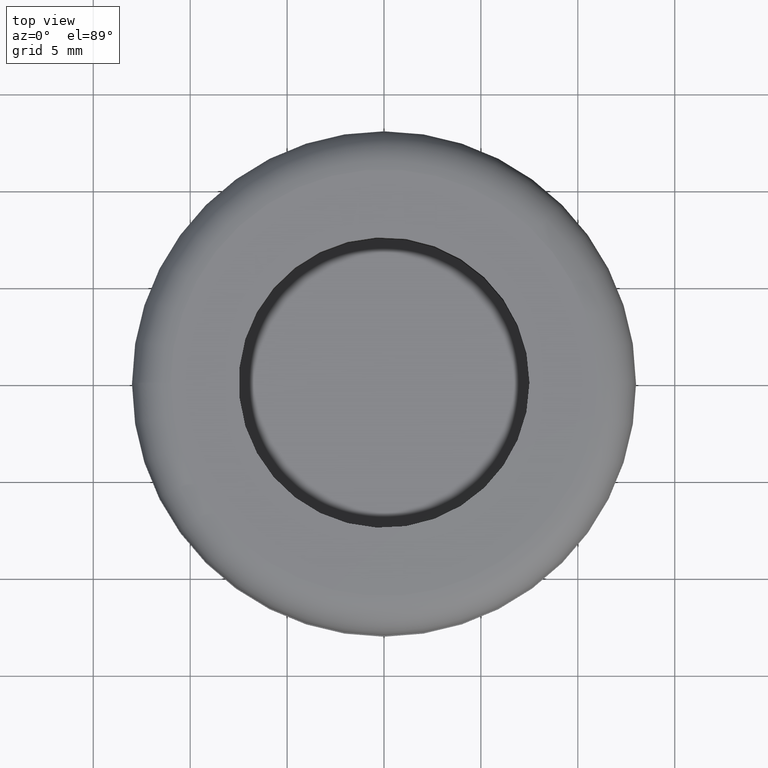
[diagram: clean part render]
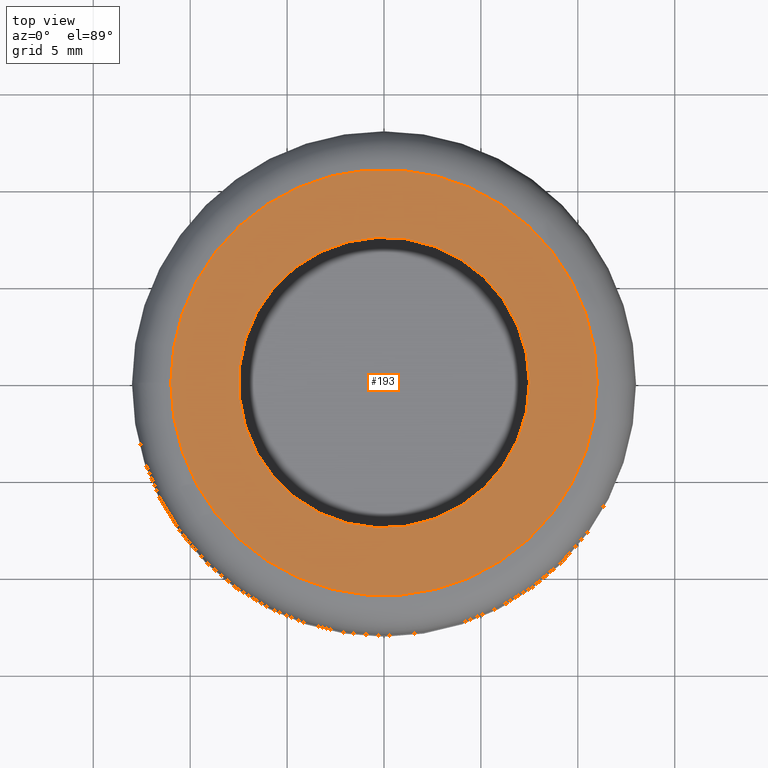
[diagram: same view with one face highlighted and labeled with its STEP entity id]
A machine part, top view. The second image highlights one B-rep face of the part: STEP entity #193.
In plain terms, the highlighted planar face has unit normal (0, 0, 1).
Its self-contained STEP definition (entity closure, byte-faithful):
#16=FACE_BOUND('',#59,.T.);
#44=FACE_OUTER_BOUND('',#58,.T.);
#58=EDGE_LOOP('',(#158,#159));
#59=EDGE_LOOP('',(#160));
#68=CIRCLE('',#223,7.5);
#75=CIRCLE('',#234,11.);
#79=CIRCLE('',#238,11.);
#88=VERTEX_POINT('',#332);
#94=VERTEX_POINT('',#351);
#95=VERTEX_POINT('',#352);
#107=EDGE_CURVE('',#88,#88,#68,.T.);
#115=EDGE_CURVE('',#94,#95,#75,.T.);
#119=EDGE_CURVE('',#95,#94,#79,.T.);
#158=ORIENTED_EDGE('',*,*,#115,.F.);
#159=ORIENTED_EDGE('',*,*,#119,.F.);
#160=ORIENTED_EDGE('',*,*,#107,.T.);
#182=PLANE('',#242);
#193=ADVANCED_FACE('',(#44,#16),#182,.T.);
#223=AXIS2_PLACEMENT_3D('',#334,#264,#265);
#234=AXIS2_PLACEMENT_3D('',#353,#287,#288);
#238=AXIS2_PLACEMENT_3D('',#359,#295,#296);
#242=AXIS2_PLACEMENT_3D('',#366,#304,#305);
#264=DIRECTION('center_axis',(0.,0.,-1.));
#265=DIRECTION('ref_axis',(-1.,0.,0.));
#287=DIRECTION('center_axis',(0.,0.,-1.));
#288=DIRECTION('ref_axis',(-1.,0.,0.));
#295=DIRECTION('center_axis',(0.,0.,-1.));
#296=DIRECTION('ref_axis',(-1.,0.,0.));
#304=DIRECTION('center_axis',(0.,0.,1.));
#305=DIRECTION('ref_axis',(1.,0.,0.));
#332=CARTESIAN_POINT('',(7.5,9.18485099360515E-16,4.25));
#334=CARTESIAN_POINT('Origin',(0.,0.,4.25));
#351=CARTESIAN_POINT('',(11.,-1.34711147906209E-15,4.25));
#352=CARTESIAN_POINT('',(-11.,-1.34711147906209E-15,4.25));
#353=CARTESIAN_POINT('Origin',(0.,0.,4.25));
#359=CARTESIAN_POINT('Origin',(0.,0.,4.25));
#366=CARTESIAN_POINT('Origin',(-1.3267006990763E-16,0.,4.25));